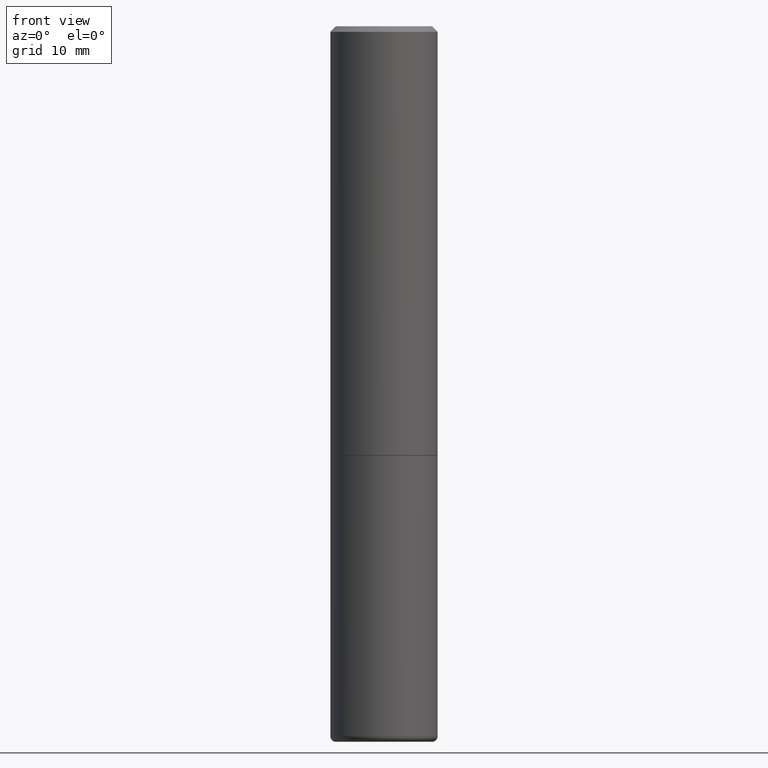
[diagram: clean part render]
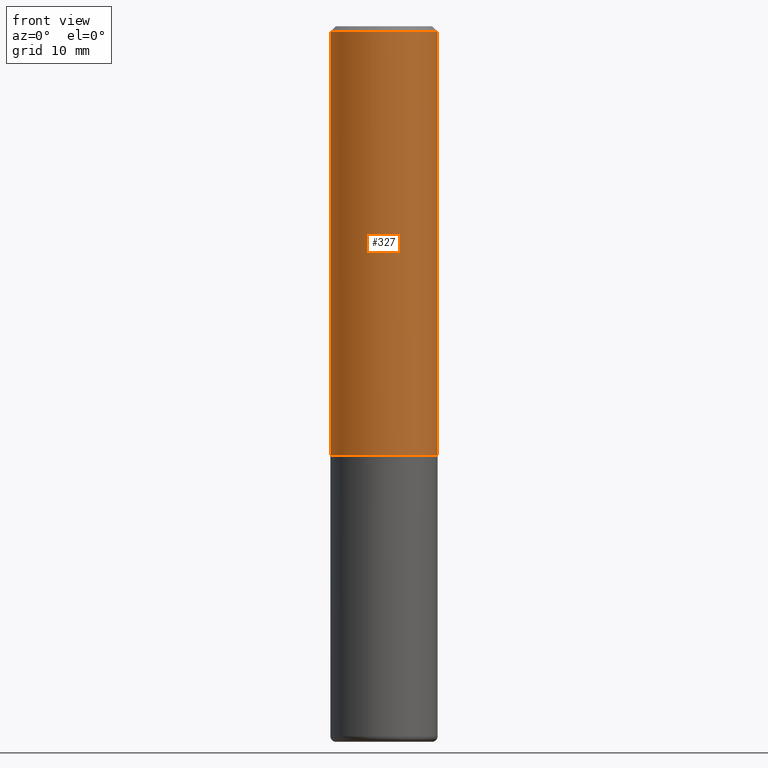
[diagram: same view with one face highlighted and labeled with its STEP entity id]
A machine part, front view. The second image highlights one B-rep face of the part: STEP entity #327.
In plain terms, the highlighted cylindrical surface (partial cylindrical patch) has radius 4.7625 mm, axis along (-0, 0, 1).
Its self-contained STEP definition (entity closure, byte-faithful):
#7 = ORIENTED_EDGE ( 'NONE', *, *, #92, .F. ) ;
#13 = EDGE_CURVE ( 'NONE', #468, #434, #348, .T. ) ;
#14 = EDGE_CURVE ( 'NONE', #434, #125, #161, .T. ) ;
#37 = CARTESIAN_POINT ( 'NONE',  ( 3.665757740471520413E-29, -5.233730526925875958E-15, -1.499000000000000332 ) ) ;
#60 = FACE_OUTER_BOUND ( 'NONE', #320, .T. ) ;
#69 = DIRECTION ( 'NONE',  ( 1.000000000000000000, -6.982962677686266711E-15, 4.876176775795935232E-29 ) ) ;
#91 = DIRECTION ( 'NONE',  ( 1.000000000000000000, -6.982962677686267499E-15, 0.000000000000000000 ) ) ;
#92 = EDGE_CURVE ( 'NONE', #468, #247, #167, .T. ) ;
#125 = VERTEX_POINT ( 'NONE', #268 ) ;
#126 = DIRECTION ( 'NONE',  ( -2.445468806185136597E-29, 3.491481338843145583E-15, 1.000000000000000000 ) ) ;
#146 = AXIS2_PLACEMENT_3D ( 'NONE', #37, #126, #491 ) ;
#150 = EDGE_CURVE ( 'NONE', #247, #125, #272, .T. ) ;
#151 = CARTESIAN_POINT ( 'NONE',  ( 0.000000000000000000, 0.000000000000000000, 0.000000000000000000 ) ) ;
#161 = LINE ( 'NONE', #306, #403 ) ;
#167 = LINE ( 'NONE', #312, #485 ) ;
#178 = CYLINDRICAL_SURFACE ( 'NONE', #461, 0.1874999999999995837 ) ;
#182 = CARTESIAN_POINT ( 'NONE',  ( 4.890937612370308191E-31, -6.982962677686342145E-17, -0.02000000000000014613 ) ) ;
#247 = VERTEX_POINT ( 'NONE', #407 ) ;
#268 = CARTESIAN_POINT ( 'NONE',  ( 0.1874999999999995004, -1.356173001359022113E-15, -0.02000000000000014613 ) ) ;
#272 = CIRCLE ( 'NONE', #477, 0.1874999999999995004 ) ;
#275 = DIRECTION ( 'NONE',  ( -2.445468806185136877E-29, 3.491481338843145188E-15, 1.000000000000000000 ) ) ;
#306 = CARTESIAN_POINT ( 'NONE',  ( 0.1874999999999995837, -1.309305502066172050E-15, 9.142831454617358592E-30 ) ) ;
#312 = CARTESIAN_POINT ( 'NONE',  ( -0.1874999999999995837, 1.332267629550184890E-15, -9.223003294227928372E-30 ) ) ;
#320 = EDGE_LOOP ( 'NONE', ( #7, #418, #368, #400 ) ) ;
#325 = DIRECTION ( 'NONE',  ( -2.445468806185136597E-29, 3.491481338843145583E-15, 1.000000000000000000 ) ) ;
#327 = ADVANCED_FACE ( 'NONE', ( #60 ), #178, .T. ) ;
#346 = DIRECTION ( 'NONE',  ( -2.445468806185136877E-29, 3.491481338843145188E-15, 1.000000000000000000 ) ) ;
#348 = CIRCLE ( 'NONE', #146, 0.1874999999999996392 ) ;
#368 = ORIENTED_EDGE ( 'NONE', *, *, #14, .T. ) ;
#400 = ORIENTED_EDGE ( 'NONE', *, *, #150, .F. ) ;
#403 = VECTOR ( 'NONE', #346, 39.37007874015748143 ) ;
#404 = DIRECTION ( 'NONE',  ( -2.445468806185136597E-29, 3.491481338843145583E-15, 1.000000000000000000 ) ) ;
#407 = CARTESIAN_POINT ( 'NONE',  ( -0.1874999999999995004, 1.239475875289308357E-15, -0.02000000000000014613 ) ) ;
#410 = CARTESIAN_POINT ( 'NONE',  ( -0.1874999999999996392, -1.319512447301182766E-15, -1.499000000000000332 ) ) ;
#418 = ORIENTED_EDGE ( 'NONE', *, *, #13, .T. ) ;
#434 = VERTEX_POINT ( 'NONE', #459 ) ;
#459 = CARTESIAN_POINT ( 'NONE',  ( 0.1874999999999996392, -6.543036028992048600E-15, -1.499000000000000332 ) ) ;
#461 = AXIS2_PLACEMENT_3D ( 'NONE', #151, #404, #69 ) ;
#468 = VERTEX_POINT ( 'NONE', #410 ) ;
#477 = AXIS2_PLACEMENT_3D ( 'NONE', #182, #325, #91 ) ;
#485 = VECTOR ( 'NONE', #275, 39.37007874015748143 ) ;
#491 = DIRECTION ( 'NONE',  ( 1.000000000000000000, -6.982962677686266711E-15, 0.000000000000000000 ) ) ;